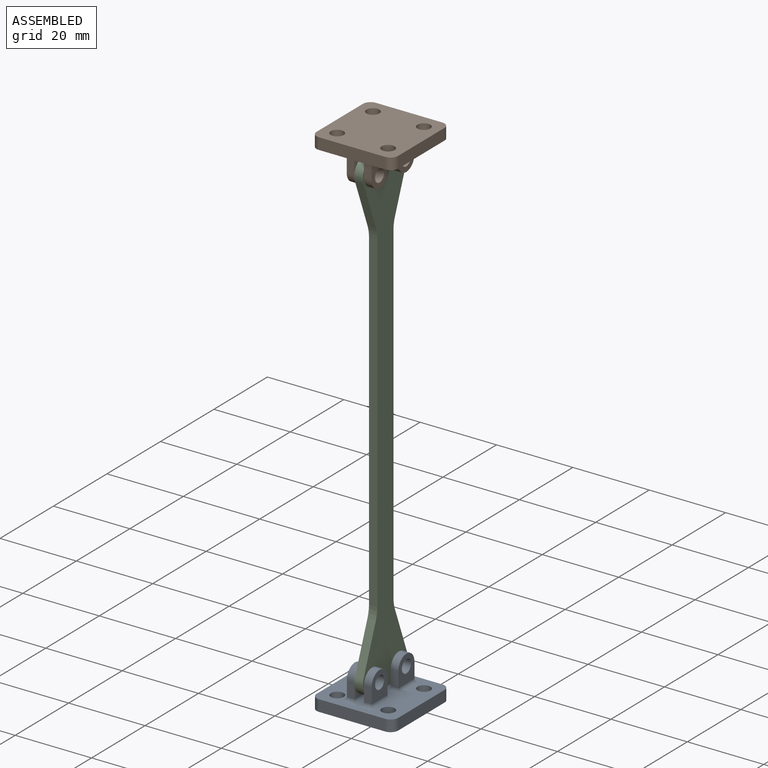
[diagram: assembled view]
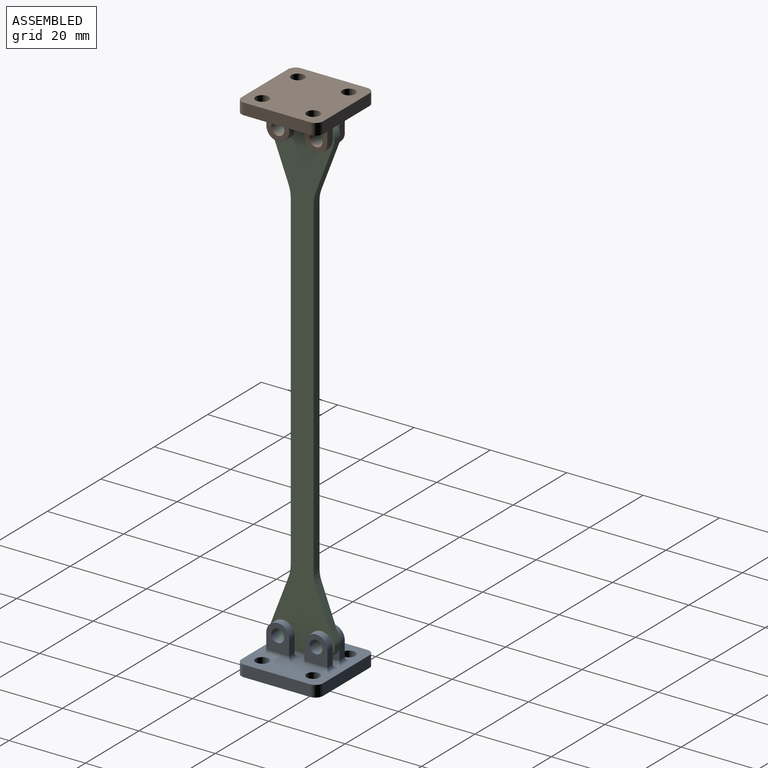
[diagram: assembled view, second angle]
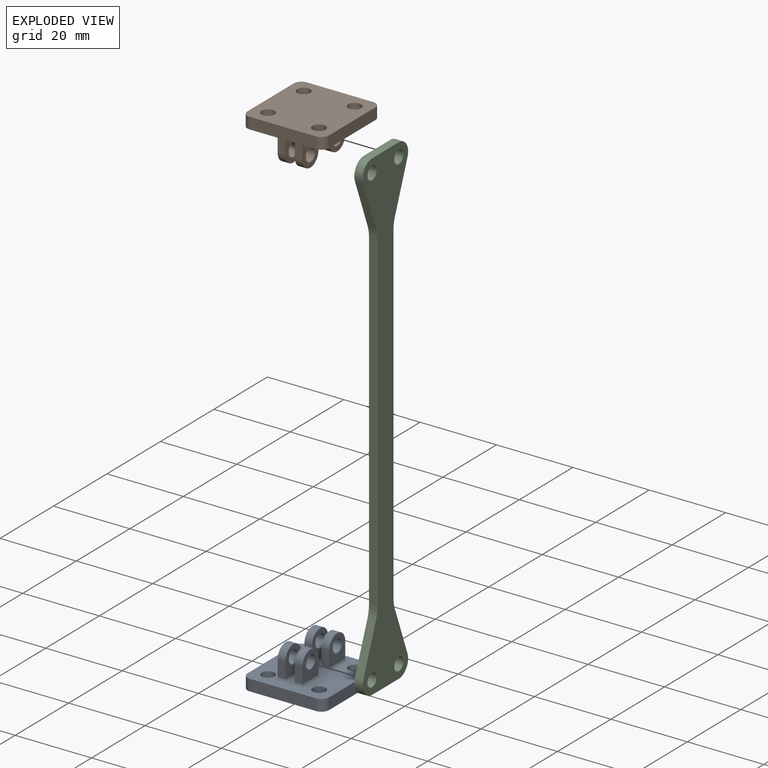
[diagram: exploded view]
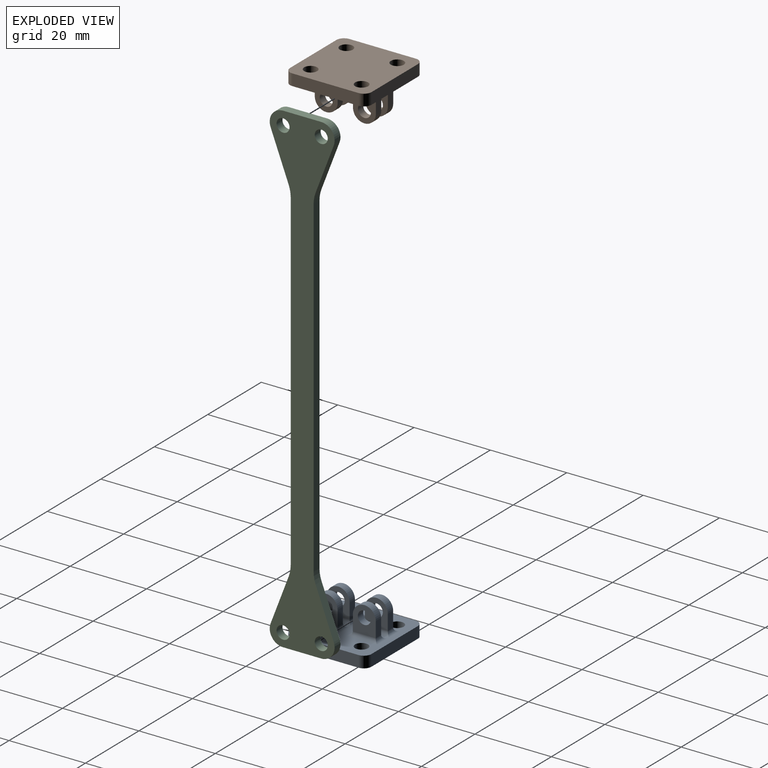
[diagram: exploded view, second angle]
ASSEMBLY  parts=3 mates=5
PART A: 54 faces, bbox 21.4x21.4x11 mm
  f0: plane 21.35x21.35mm, normal (0,0,-1), area 288.1mm2, adj f1,f2,f3,f4,f5,f6,f7,f8
  f1: plane 17.35x3mm, normal (0,1,0), area 52.1mm2, adj f0,f9,f50,f53
  f2: plane 17.35x3mm, normal (-1,0,0), area 52mm2, adj f0,f9,f52,f53
  f3: plane 17.35x3mm, normal (0,-1,0), area 52.1mm2, adj f0,f9,f51,f52
  f4: cylinder r=1.7mm len=3.4mm, axis (0,0,-1), area 32mm2, adj f0,f9
  f5: cylinder r=1.7mm len=3.4mm, axis (0,0,-1), area 32mm2, adj f0,f9
  f6: cylinder r=1.7mm len=3.4mm, axis (0,0,-1), area 32mm2, adj f0,f9
  f7: plane 17.35x3mm, normal (1,0,0), area 52.1mm2, adj f0,f9,f50,f51
  f8: cylinder r=1.7mm len=3.4mm, axis (0,0,-1), area 32mm2, adj f0,f9
  f9: plane 21.35x21.35mm, normal (0,0,1), area 416.1mm2, adj f1,f2,f3,f4,f5,f6,f7,f8
  f10: plane 4x2mm, normal (0,-1,0), area 8mm2, adj f11,f13,f38,f48
  f11: plane 7x6mm, normal (-1,0,0), area 29.1mm2, adj f10,f12,f29,f40,f48
  f12: plane 4x2mm, normal (0,1,0), area 8mm2, adj f11,f13,f41,f48
  f13: plane 7x6mm, normal (1,0,0), area 29.1mm2, adj f10,f12,f29,f39,f48
  f14: plane 4x2mm, normal (0,-1,0), area 8mm2, adj f15,f17,f43,f49
  f15: plane 7x6mm, normal (-1,0,0), area 29.1mm2, adj f14,f16,f28,f45,f49
  f16: plane 4x2mm, normal (0,1,0), area 8mm2, adj f15,f17,f44,f49
  f17: plane 7x6mm, normal (1,0,0), area 29.1mm2, adj f14,f16,f28,f42,f49
  f18: plane 7x6mm, normal (-1,0,0), area 29.1mm2, adj f19,f21,f27,f35,f47
  f19: plane 4x2mm, normal (0,1,0), area 8mm2, adj f18,f20,f37,f47
  f20: plane 7x6mm, normal (1,0,0), area 29.1mm2, adj f19,f21,f27,f36,f47
  f21: plane 4x2mm, normal (0,-1,0), area 8mm2, adj f18,f20,f34,f47
  f22: plane 7x6mm, normal (-1,0,0), area 29.1mm2, adj f23,f25,f26,f31,f46
  f23: plane 4x2mm, normal (0,1,0), area 8mm2, adj f22,f24,f33,f46
  f24: plane 7x6mm, normal (1,0,0), area 29.1mm2, adj f23,f25,f26,f32,f46
  f25: plane 4x2mm, normal (0,-1,0), area 8mm2, adj f22,f24,f30,f46
  f26: cylinder r=1.7mm len=3.4mm, axis (-1,0,0), area 21.4mm2, adj f22,f24
  f27: cylinder r=1.7mm len=3.4mm, axis (-1,0,0), area 21.4mm2, adj f18,f20
  f28: cylinder r=1.7mm len=3.4mm, axis (-1,0,0), area 21.4mm2, adj f15,f17
  f29: cylinder r=1.7mm len=3.4mm, axis (-1,0,0), area 21.4mm2, adj f11,f13
  f30: cylinder r=1mm len=4mm, axis (1,0,0), area 4.3mm2, adj f0,f25,f31,f32
  f31: cylinder r=1mm len=8mm, axis (0,-1,0), area 10.6mm2, adj f0,f22,f30,f33
  f32: cylinder r=1mm len=8mm, axis (0,1,0), area 10.6mm2, adj f0,f24,f30,f33
  f33: cylinder r=1mm len=4mm, axis (-1,0,0), area 4.3mm2, adj f0,f23,f31,f32
  f34: cylinder r=1mm len=4mm, axis (1,0,0), area 4.3mm2, adj f0,f21,f35,f36
  f35: cylinder r=1mm len=8mm, axis (0,-1,0), area 10.6mm2, adj f0,f18,f34,f37
  f36: cylinder r=1mm len=8mm, axis (0,1,0), area 10.6mm2, adj f0,f20,f34,f37
  f37: cylinder r=1mm len=4mm, axis (-1,0,0), area 4.3mm2, adj f0,f19,f35,f36
  f38: cylinder r=1mm len=4mm, axis (1,0,0), area 4.3mm2, adj f0,f10,f39,f40
  f39: cylinder r=1mm len=8mm, axis (0,1,0), area 10.6mm2, adj f0,f13,f38,f41
  f40: cylinder r=1mm len=8mm, axis (0,-1,0), area 10.6mm2, adj f0,f11,f38,f41
  f41: cylinder r=1mm len=4mm, axis (-1,0,0), area 4.3mm2, adj f0,f12,f39,f40
  f42: cylinder r=1mm len=8mm, axis (0,1,0), area 10.6mm2, adj f0,f17,f43,f44
  f43: cylinder r=1mm len=4mm, axis (1,0,0), area 4.3mm2, adj f0,f14,f42,f45
  f44: cylinder r=1mm len=4mm, axis (-1,0,0), area 4.3mm2, adj f0,f16,f42,f45
  f45: cylinder r=1mm len=8mm, axis (0,-1,0), area 10.6mm2, adj f0,f15,f43,f44
  f46: cylinder r=3mm len=6mm, axis (1,0,0), area 18.8mm2, adj f22,f23,f24,f25
  f47: cylinder r=3mm len=6mm, axis (1,0,0), area 18.8mm2, adj f18,f19,f20,f21
  f48: cylinder r=3mm len=6mm, axis (1,0,0), area 18.8mm2, adj f10,f11,f12,f13
  f49: cylinder r=3mm len=6mm, axis (1,0,0), area 18.8mm2, adj f14,f15,f16,f17
  f50: cylinder r=2mm len=3mm, axis (0,0,1), area 9.4mm2, adj f0,f1,f7,f9
  f51: cylinder r=2mm len=3mm, axis (0,0,-1), area 9.4mm2, adj f0,f3,f7,f9
  f52: cylinder r=2mm len=3mm, axis (0,0,1), area 9.4mm2, adj f0,f2,f3,f9
  f53: cylinder r=2mm len=3mm, axis (0,0,-1), area 9.4mm2, adj f0,f1,f2,f9
PART B: same geometry as A
PART C: 22 faces, bbox 127x17x2.2 mm
  f0: plane 87.04x2.2mm, normal (0,1,0), area 191.5mm2, adj f16,f17,f20,f21
  f1: plane 12.37x4.74mm, normal (0.36,0.93,0), area 29.1mm2, adj f2,f16,f17,f21
  f2: cylinder r=3.5mm len=4.75mm, axis (0,0,-1), area 14.9mm2, adj f1,f3,f16,f17
  f3: plane 10x2.2mm, normal (-1,0,0), area 22mm2, adj f2,f4,f16,f17
  f4: cylinder r=3.5mm len=4.75mm, axis (0,0,-1), area 14.9mm2, adj f3,f5,f16,f17
  f5: plane 12.37x4.74mm, normal (0.36,-0.93,0), area 29.1mm2, adj f4,f16,f17,f18
  f6: plane 87.04x2.2mm, normal (0,-1,0), area 191.5mm2, adj f16,f17,f18,f19
  f7: plane 12.37x4.74mm, normal (-0.36,-0.93,0), area 29.1mm2, adj f8,f16,f17,f19
  f8: cylinder r=3.5mm len=4.75mm, axis (0,0,-1), area 14.9mm2, adj f7,f9,f16,f17
  f9: plane 10x2.2mm, normal (1,0,0), area 22mm2, adj f8,f10,f16,f17
  f10: cylinder r=3.5mm len=4.75mm, axis (0,0,-1), area 14.9mm2, adj f9,f14,f16,f17
  f11: cylinder r=1.7mm len=3.4mm, axis (0,0,-1), area 23.5mm2, adj f16,f17
  f12: cylinder r=1.7mm len=3.4mm, axis (0,0,-1), area 23.5mm2, adj f16,f17
  f13: cylinder r=1.7mm len=3.4mm, axis (0,0,-1), area 23.5mm2, adj f16,f17
  f14: plane 12.37x4.74mm, normal (-0.36,0.93,0), area 29.1mm2, adj f10,f16,f17,f20
  f15: cylinder r=1.7mm len=3.4mm, axis (0,0,-1), area 23.5mm2, adj f16,f17
  f16: plane 127x17mm, normal (0,0,1), area 964.7mm2, adj f0,f1,f2,f3,f4,f5,f6,f7
  f17: plane 127x17mm, normal (0,0,-1), area 964.7mm2, adj f0,f1,f2,f3,f4,f5,f6,f7
  f18: cylinder r=8mm len=2.86mm, axis (0,0,-1), area 6.4mm2, adj f5,f6,f16,f17
  f19: cylinder r=8mm len=2.86mm, axis (0,0,1), area 6.4mm2, adj f6,f7,f16,f17
  f20: cylinder r=8mm len=2.86mm, axis (0,0,1), area 6.4mm2, adj f0,f14,f16,f17
  f21: cylinder r=8mm len=2.86mm, axis (0,0,-1), area 6.4mm2, adj f0,f1,f16,f17
PLACE A rot(axis=(-1,0,0),180deg) t=(-2.17,-5.9,-128.45)mm
PLACE B t=(-2.2,-5.9,1.55)mm
PLACE C rot(axis=(0,1,0),90deg) t=(-3.12,-5.9,-63.45)mm
MATE cylindrical B.f46 <-> C.f2  axis (1,0,0) through (1.05,-0.9,-3.45)mm
MATE cylindrical A.f46 <-> C.f8  axis (1,0,0) through (1.08,-10.9,-123.45)mm
MATE cylindrical C.f4 <-> B.f48  axis (1,0,0) through (-0.92,-10.9,-3.45)mm
MATE cylindrical C.f10 <-> A.f48  axis (1,0,0) through (-0.92,-0.9,-123.45)mm
MATE planar C.f16 <-> A.f22  axis (1,0,0) through (-0.92,-5.9,-63.45)mm
